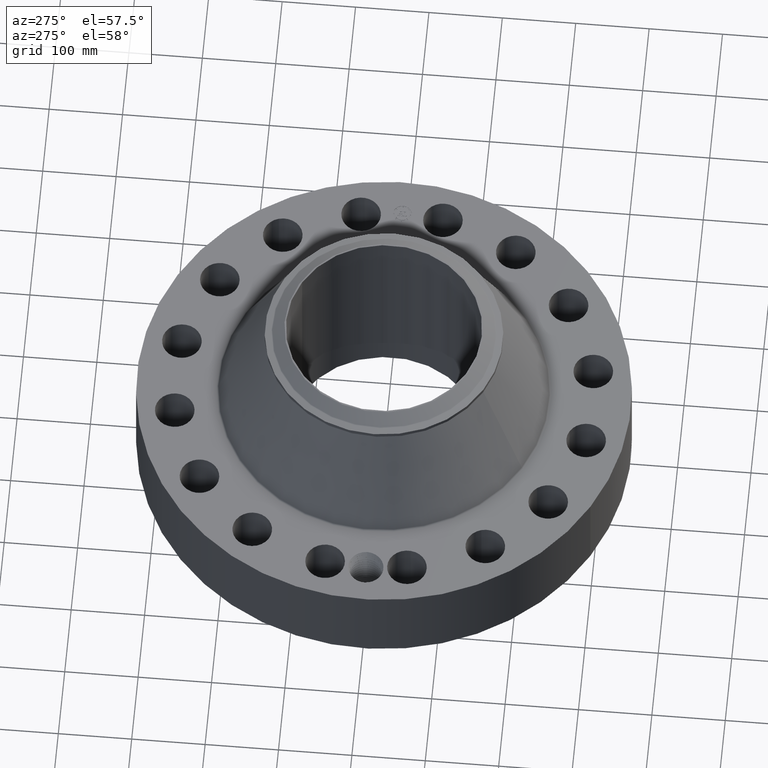
[diagram: clean part render]
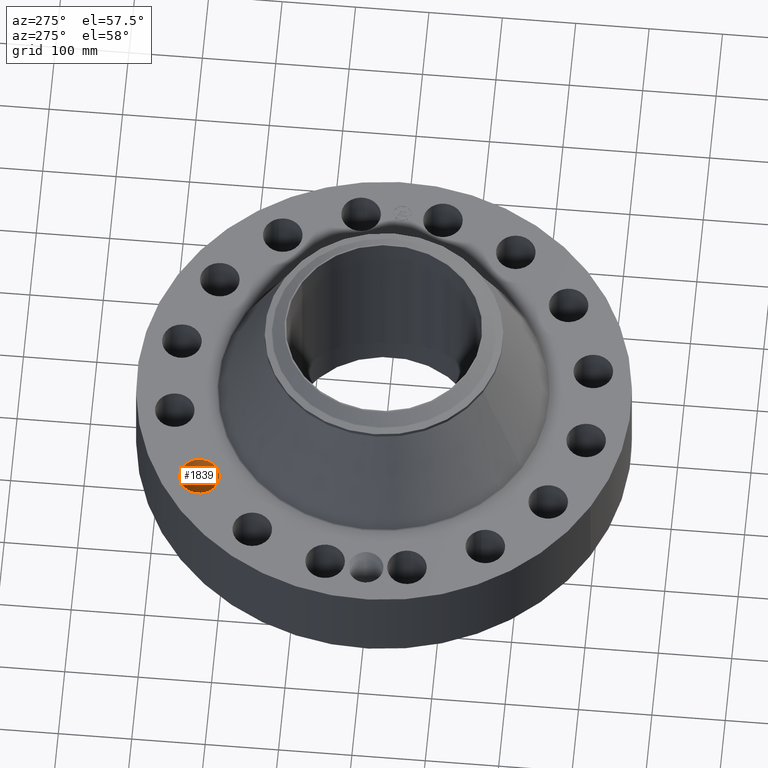
[diagram: same view with one face highlighted and labeled with its STEP entity id]
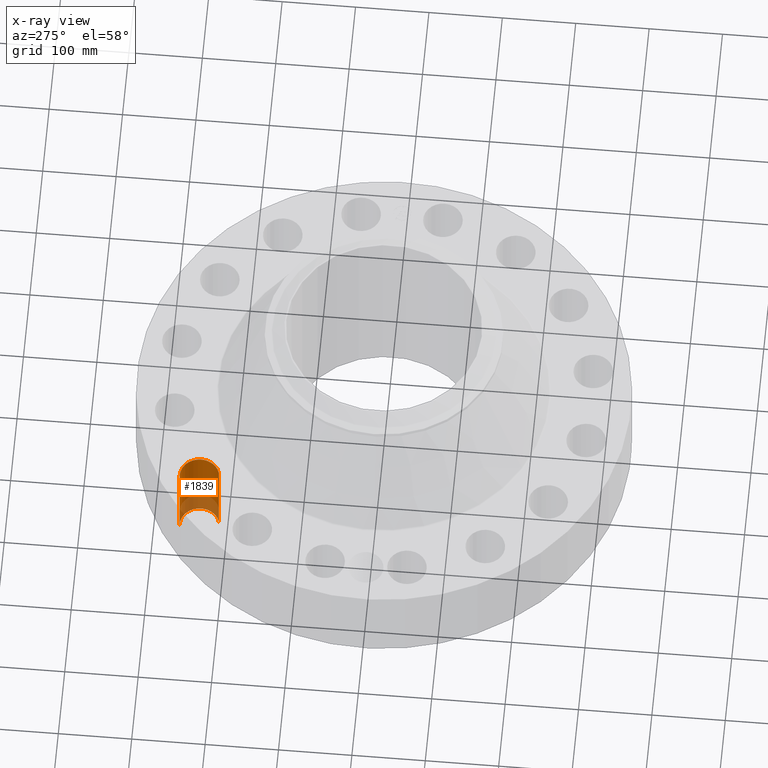
[diagram: x-ray of the same camera — body ghosted, the highlighted face saturated]
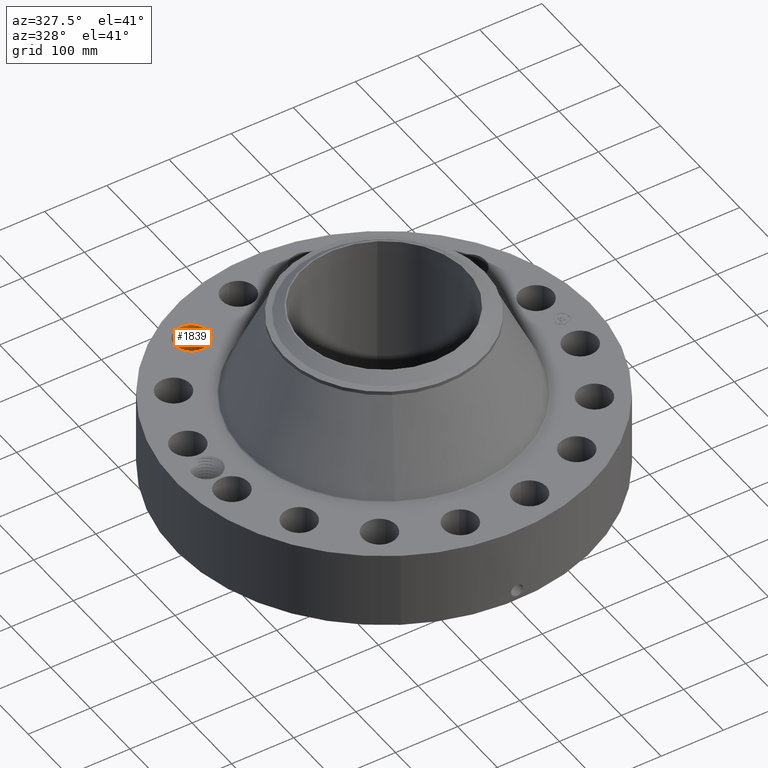
[diagram: same view with one face highlighted and labeled with its STEP entity id]
A machine part, auxiliary view. The second image highlights one B-rep face of the part: STEP entity #1839.
The next image is the same camera in x-ray: the body ghosted, the highlighted face saturated — about 28% of this face is hidden behind the body in this view.
A second angle (auxiliary view) of the same face is appended — the face is thin or edge-on in the first view.
In plain terms, the highlighted cylindrical surface (edge-blend (fillet) strip) has radius 26.924 mm, axis along (0, 0, -1).
Its self-contained STEP definition (entity closure, byte-faithful):
#451=AXIS2_PLACEMENT_3D('Circle Axis2P3D',#449,#450,$) ;
#915=AXIS2_PLACEMENT_3D('Circle Axis2P3D',#913,#914,$) ;
#1814=AXIS2_PLACEMENT_3D('Cylinder Axis2P3D',#1811,#1812,#1813) ;
#444=CARTESIAN_POINT('Vertex',(-5.95173321848,8.33691053065,0.250000000001)) ;
#446=CARTESIAN_POINT('Vertex',(-6.54859702451,10.3711557462,0.250000000001)) ;
#449=CARTESIAN_POINT('Axis2P3D Location',(-6.2501651215,9.35403313844,0.250000000001)) ;
#913=CARTESIAN_POINT('Axis2P3D Location',(-6.2501651215,9.35403313844,5.13000000002)) ;
#917=CARTESIAN_POINT('Vertex',(-6.54859702451,10.3711557462,5.13000000002)) ;
#919=CARTESIAN_POINT('Vertex',(-5.95173321848,8.33691053065,5.13000000002)) ;
#1811=CARTESIAN_POINT('Axis2P3D Location',(-6.2501651215,9.35403313844,5.12606299215)) ;
#1816=CARTESIAN_POINT('Line Origine',(-5.95173321848,8.33691053065,2.69000000001)) ;
#1821=CARTESIAN_POINT('Line Origine',(-6.54859702451,10.3711557462,2.69000000001)) ;
#450=DIRECTION('Axis2P3D Direction',(0.,0.,-0.0393700787402)) ;
#914=DIRECTION('Axis2P3D Direction',(0.,0.,-0.0393700787402)) ;
#1812=DIRECTION('Axis2P3D Direction',(0.,0.,-0.0393700787402)) ;
#1813=DIRECTION('Axis2P3D XDirection',(-0.0110842335096,0.0377775444876,0.)) ;
#1817=DIRECTION('Vector Direction',(0.,0.,-0.0393700787402)) ;
#1822=DIRECTION('Vector Direction',(0.,0.,-0.0393700787402)) ;
#1818=VECTOR('Line Direction',#1817,0.0393700787402) ;
#1823=VECTOR('Line Direction',#1822,0.0393700787402) ;
#1834=ORIENTED_EDGE('',*,*,#1825,.F.) ;
#1835=ORIENTED_EDGE('',*,*,#453,.T.) ;
#1836=ORIENTED_EDGE('',*,*,#1820,.T.) ;
#1837=ORIENTED_EDGE('',*,*,#921,.F.) ;
#1839=ADVANCED_FACE('PartBody',(#1838),#1815,.F.) ;
#452=CIRCLE('generated circle',#451,1.06) ;
#916=CIRCLE('generated circle',#915,1.06) ;
#1815=CYLINDRICAL_SURFACE('generated cylinder',#1814,1.06) ;
#453=EDGE_CURVE('',#447,#445,#452,.T.) ;
#921=EDGE_CURVE('',#918,#920,#916,.T.) ;
#1820=EDGE_CURVE('',#445,#920,#1819,.F.) ;
#1825=EDGE_CURVE('',#447,#918,#1824,.F.) ;
#1833=EDGE_LOOP('',(#1834,#1835,#1836,#1837)) ;
#1838=FACE_OUTER_BOUND('',#1833,.T.) ;
#1819=LINE('Line',#1816,#1818) ;
#1824=LINE('Line',#1821,#1823) ;
#445=VERTEX_POINT('',#444) ;
#447=VERTEX_POINT('',#446) ;
#918=VERTEX_POINT('',#917) ;
#920=VERTEX_POINT('',#919) ;